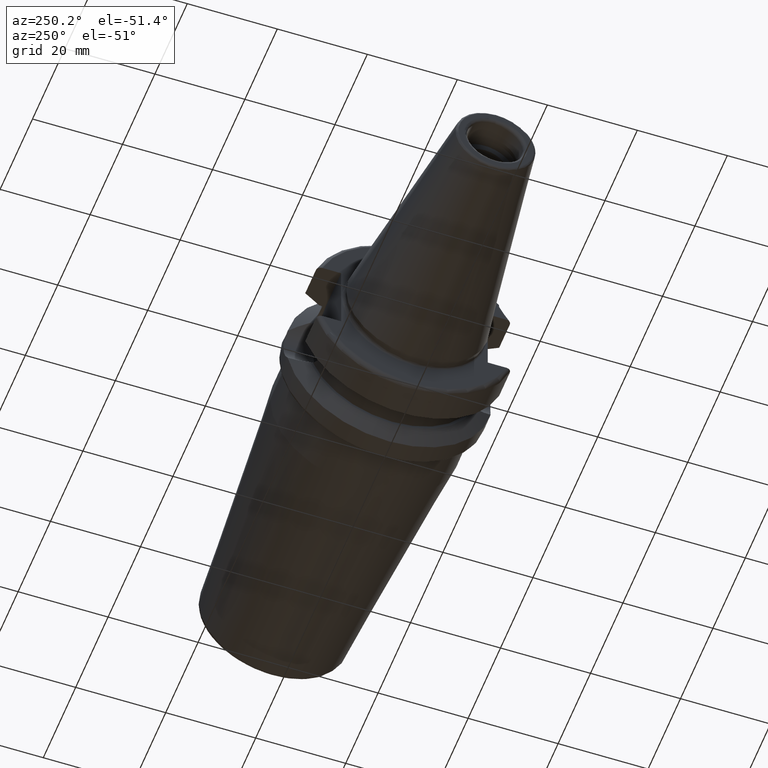
[diagram: clean part render]
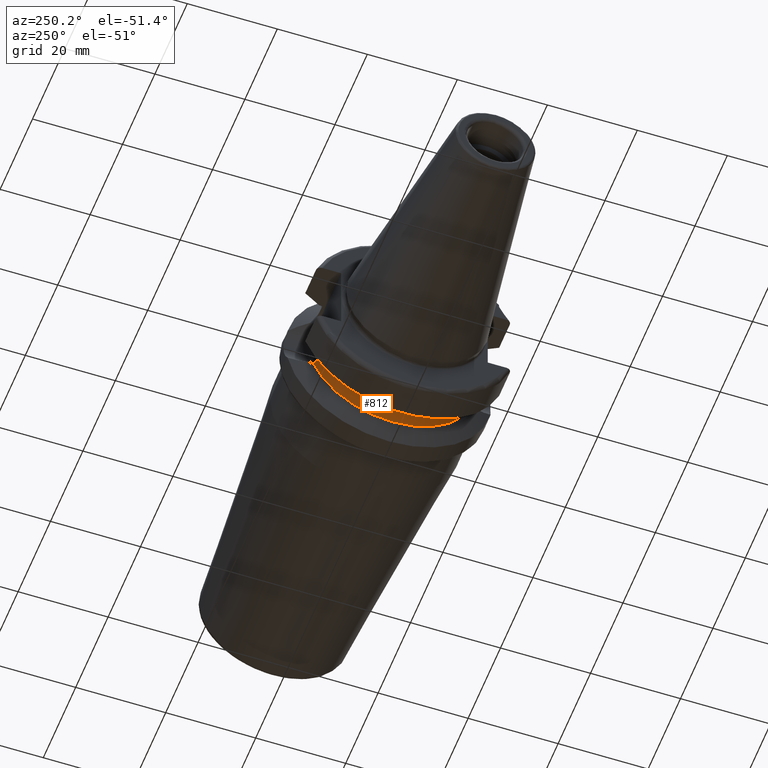
[diagram: same view with one face highlighted and labeled with its STEP entity id]
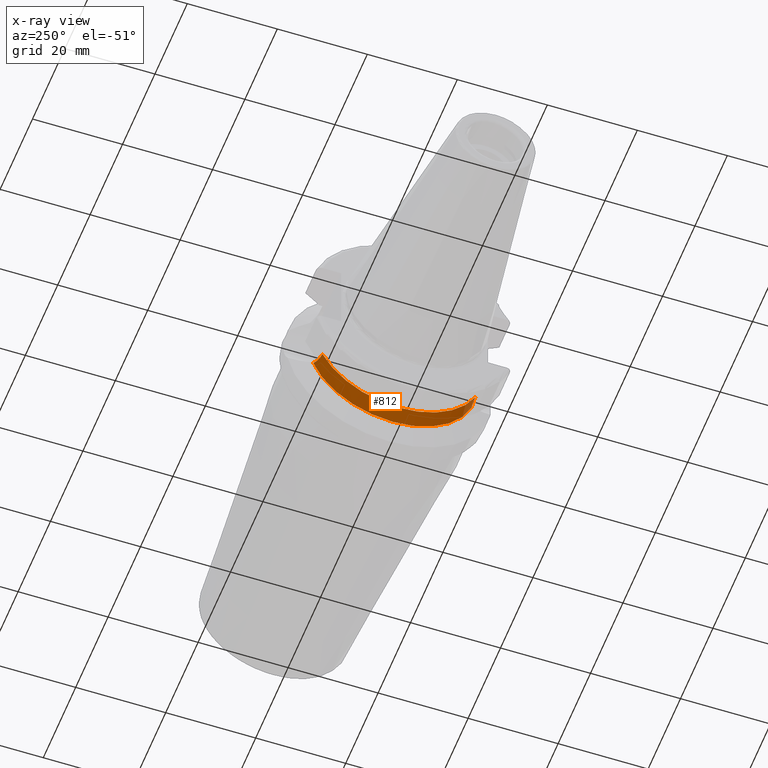
[diagram: x-ray of the same camera — body ghosted, the highlighted face saturated]
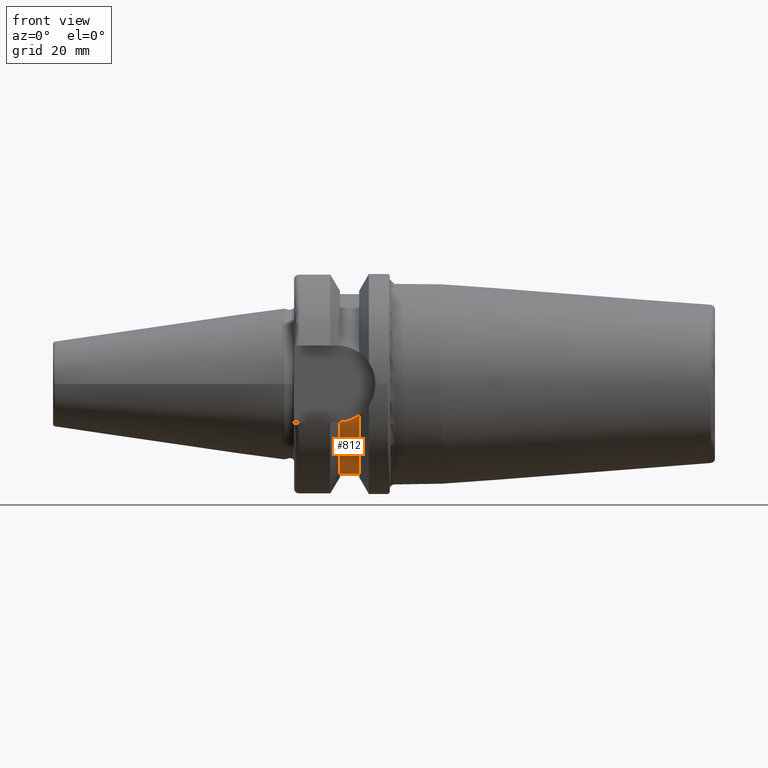
[diagram: same view with one face highlighted and labeled with its STEP entity id]
A machine part, auxiliary view. The second image highlights one B-rep face of the part: STEP entity #812.
The next image is the same camera in x-ray: the body ghosted, the highlighted face saturated — about 0% of this face is hidden behind the body in this view.
A second angle (front view) of the same face is appended — the face is thin or edge-on in the first view.
In plain terms, the highlighted cylindrical surface (partial cylindrical patch) has radius 18.8 mm, axis along (1, 0, 0).
Its self-contained STEP definition (entity closure, byte-faithful):
#20=B_SPLINE_CURVE_WITH_KNOTS('',3,(#1309,#1310,#1311,#1312,#1313,#1314),
 .UNSPECIFIED.,.F.,.F.,(4,2,4),(1.98157246783865,2.15302711471405,2.39646987897604),
 .UNSPECIFIED.);
#31=B_SPLINE_CURVE_WITH_KNOTS('',3,(#1446,#1447,#1448,#1449,#1450,#1451),
 .UNSPECIFIED.,.F.,.F.,(4,2,4),(2.52521404816197,2.76865681242397,2.94011145929936),
 .UNSPECIFIED.);
#78=CYLINDRICAL_SURFACE('',#914,18.8);
#107=FACE_OUTER_BOUND('',#161,.T.);
#161=EDGE_LOOP('',(#640,#641,#642,#643));
#301=CIRCLE('',#913,18.8);
#302=CIRCLE('',#915,18.8);
#354=VERTEX_POINT('',#1306);
#355=VERTEX_POINT('',#1308);
#380=VERTEX_POINT('',#1440);
#381=VERTEX_POINT('',#1444);
#444=EDGE_CURVE('',#355,#354,#20,.T.);
#476=EDGE_CURVE('',#355,#380,#301,.T.);
#478=EDGE_CURVE('',#354,#381,#302,.T.);
#479=EDGE_CURVE('',#381,#380,#31,.T.);
#640=ORIENTED_EDGE('',*,*,#444,.T.);
#641=ORIENTED_EDGE('',*,*,#478,.T.);
#642=ORIENTED_EDGE('',*,*,#479,.T.);
#643=ORIENTED_EDGE('',*,*,#476,.F.);
#812=ADVANCED_FACE('',(#107),#78,.T.);
#913=AXIS2_PLACEMENT_3D('',#1441,#1095,#1096);
#914=AXIS2_PLACEMENT_3D('',#1443,#1098,#1099);
#915=AXIS2_PLACEMENT_3D('',#1445,#1100,#1101);
#1095=DIRECTION('center_axis',(1.,1.62798202122572E-21,0.));
#1096=DIRECTION('ref_axis',(0.,0.,-1.));
#1098=DIRECTION('center_axis',(1.,1.62798202122572E-21,0.));
#1099=DIRECTION('ref_axis',(0.,1.,0.));
#1100=DIRECTION('center_axis',(1.,1.62798202122572E-21,0.));
#1101=DIRECTION('ref_axis',(0.,0.,-1.));
#1306=CARTESIAN_POINT('',(11.6,-17.0017646142981,-8.02371485036701));
#1308=CARTESIAN_POINT('',(15.6,-17.6141988179991,-6.57114906237866));
#1309=CARTESIAN_POINT('Ctrl Pts',(15.6,-17.6141988179991,-6.57114906237866));
#1310=CARTESIAN_POINT('Ctrl Pts',(15.1233906500761,-17.4883779674429,-6.90841632813503));
#1311=CARTESIAN_POINT('Ctrl Pts',(14.5999261767414,-17.3685240417641,-7.19978909477497));
#1312=CARTESIAN_POINT('Ctrl Pts',(13.2665825144021,-17.1292648239135,-7.75593228074541));
#1313=CARTESIAN_POINT('Ctrl Pts',(12.4254758830597,-17.0333236516193,-7.95684316636589));
#1314=CARTESIAN_POINT('Ctrl Pts',(11.6,-17.0017646142981,-8.02371485036701));
#1440=CARTESIAN_POINT('',(15.6,17.6141988179991,-6.57114906237866));
#1441=CARTESIAN_POINT('Origin',(15.6,2.08176096614738E-15,0.));
#1443=CARTESIAN_POINT('Origin',(13.6,2.08175771018334E-15,0.));
#1444=CARTESIAN_POINT('',(11.6,17.0017646142981,-8.02371485036701));
#1445=CARTESIAN_POINT('Origin',(11.6,2.08175445421929E-15,0.));
#1446=CARTESIAN_POINT('Ctrl Pts',(11.6,17.0017646142981,-8.02371485036701));
#1447=CARTESIAN_POINT('Ctrl Pts',(12.4254758830597,17.0333236516193,-7.95684316636589));
#1448=CARTESIAN_POINT('Ctrl Pts',(13.2665825144021,17.1292648239135,-7.75593228074541));
#1449=CARTESIAN_POINT('Ctrl Pts',(14.5999261767414,17.3685240417641,-7.19978909477497));
#1450=CARTESIAN_POINT('Ctrl Pts',(15.1233906500761,17.4883779674429,-6.90841632813503));
#1451=CARTESIAN_POINT('Ctrl Pts',(15.6,17.6141988179991,-6.57114906237866));